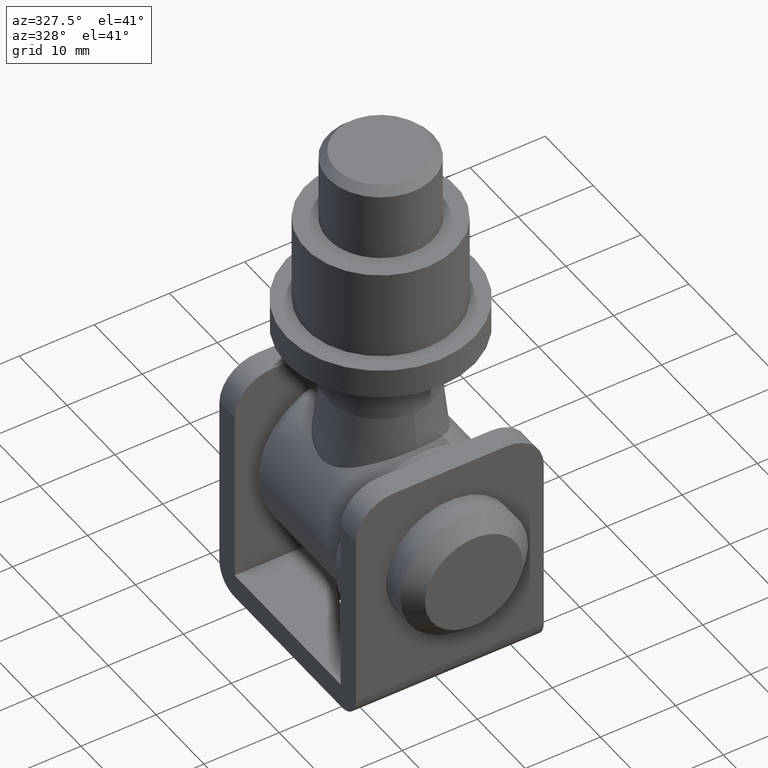
[diagram: clean part render]
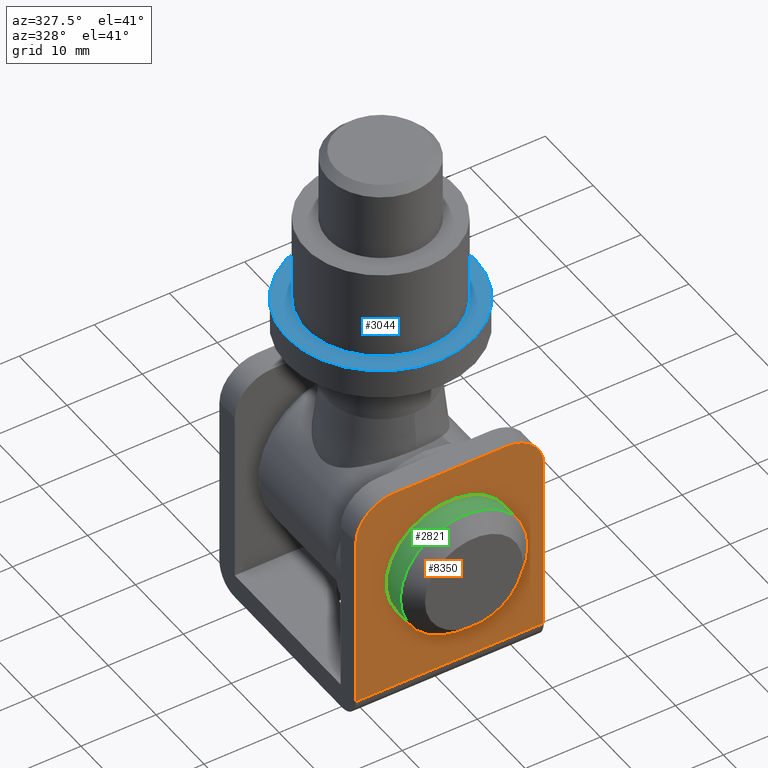
[diagram: same view with three faces highlighted in distinct colors, each labeled with its STEP entity id]
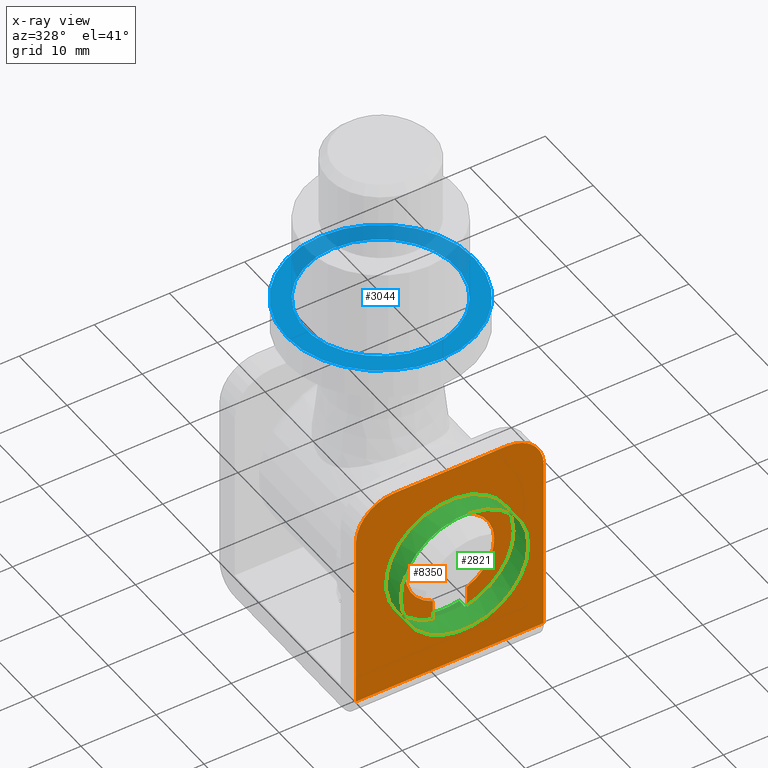
[diagram: x-ray of the same camera — body ghosted, the three highlighted faces saturated]
A machine part, auxiliary view with three faces highlighted in distinct colors.
The next image is the same camera in x-ray (body ghosted, the three faces saturated) — at least one of them is partly hidden behind the body in this view.
Their STEP definitions:

[orange] entity #8350 — the highlighted planar face has unit normal (0, 1, 0).
#52 = VECTOR ( 'NONE', #1464, 1000.000000000000000 ) ;
#75 = CARTESIAN_POINT ( 'NONE',  ( 2.249999999999999600, -14.25000000000000200, 13.14587312212119700 ) ) ;
#88 = PLANE ( 'NONE',  #3722 ) ;
#387 = ORIENTED_EDGE ( 'NONE', *, *, #9756, .F. ) ;
#402 = EDGE_CURVE ( 'NONE', #7294, #7739, #7251, .T. ) ;
#419 = VECTOR ( 'NONE', #12259, 1000.000000000000000 ) ;
#431 = CARTESIAN_POINT ( 'NONE',  ( -7.500000000000000000, -14.25000000000000200, 31.60000000000000100 ) ) ;
#746 = FACE_OUTER_BOUND ( 'NONE', #11589, .T. ) ;
#891 = DIRECTION ( 'NONE',  ( -0.0000000000000000000, 1.213093339843921800E-016, -1.000000000000000000 ) ) ;
#930 = VERTEX_POINT ( 'NONE', #431 ) ;
#1143 = ORIENTED_EDGE ( 'NONE', *, *, #4071, .F. ) ;
#1283 = VECTOR ( 'NONE', #891, 1000.000000000000000 ) ;
#1303 = CARTESIAN_POINT ( 'NONE',  ( -12.50000000000000000, -14.24999999999999800, 3.000000000000020900 ) ) ;
#1415 = CARTESIAN_POINT ( 'NONE',  ( -12.50000000000000000, -14.25000000000000200, 26.60000000000000100 ) ) ;
#1464 = DIRECTION ( 'NONE',  ( 0.0000000000000000000, 1.213093339843921800E-016, -1.000000000000000000 ) ) ;
#1805 = CARTESIAN_POINT ( 'NONE',  ( 2.250000000000000000, -14.25000000000000000, 13.14587312212119700 ) ) ;
#1924 = AXIS2_PLACEMENT_3D ( 'NONE', #11732, #2741, #6561 ) ;
#2236 = DIRECTION ( 'NONE',  ( 0.0000000000000000000, -1.000000000000000000, -1.213093339843921800E-016 ) ) ;
#2471 = EDGE_CURVE ( 'NONE', #3761, #5016, #8088, .T. ) ;
#2603 = LINE ( 'NONE', #5314, #419 ) ;
#2741 = DIRECTION ( 'NONE',  ( 0.0000000000000000000, 1.000000000000000000, 0.0000000000000000000 ) ) ;
#2986 = ORIENTED_EDGE ( 'NONE', *, *, #3904, .T. ) ;
#3127 = EDGE_LOOP ( 'NONE', ( #387, #4205, #2986, #1143 ) ) ;
#3133 = VERTEX_POINT ( 'NONE', #3250 ) ;
#3250 = CARTESIAN_POINT ( 'NONE',  ( 7.500000000000000900, -14.25000000000000200, 31.60000000000000100 ) ) ;
#3722 = AXIS2_PLACEMENT_3D ( 'NONE', #10145, #4122, #11076 ) ;
#3761 = VERTEX_POINT ( 'NONE', #1415 ) ;
#3904 = EDGE_CURVE ( 'NONE', #9634, #12872, #4327, .T. ) ;
#4071 = EDGE_CURVE ( 'NONE', #10161, #12872, #8225, .T. ) ;
#4122 = DIRECTION ( 'NONE',  ( -0.0000000000000000000, 1.000000000000000000, 1.213093339843921800E-016 ) ) ;
#4205 = ORIENTED_EDGE ( 'NONE', *, *, #11957, .F. ) ;
#4250 = CARTESIAN_POINT ( 'NONE',  ( 12.50000000000000000, -14.24999999999999800, 3.000000000000020400 ) ) ;
#4325 = CARTESIAN_POINT ( 'NONE',  ( 0.0000000000000000000, -14.25000000000000000, 18.60000000000000500 ) ) ;
#4327 = CIRCLE ( 'NONE', #1924, 5.900000000000002100 ) ;
#4461 = ORIENTED_EDGE ( 'NONE', *, *, #9916, .T. ) ;
#4466 = CARTESIAN_POINT ( 'NONE',  ( -2.250000000000000000, -14.25000000000000000, 13.14587312212119700 ) ) ;
#4564 = CARTESIAN_POINT ( 'NONE',  ( 2.250000000000001300, -14.25000000000000000, 9.989105737497418100 ) ) ;
#5016 = VERTEX_POINT ( 'NONE', #5590 ) ;
#5201 = EDGE_CURVE ( 'NONE', #7294, #3133, #9320, .T. ) ;
#5314 = CARTESIAN_POINT ( 'NONE',  ( 12.50000000000000000, -14.25000000000000200, 31.60000000000000100 ) ) ;
#5411 = ORIENTED_EDGE ( 'NONE', *, *, #10103, .T. ) ;
#5506 = DIRECTION ( 'NONE',  ( -1.000000000000000000, -0.0000000000000000000, -0.0000000000000000000 ) ) ;
#5576 = VECTOR ( 'NONE', #9867, 1000.000000000000000 ) ;
#5590 = CARTESIAN_POINT ( 'NONE',  ( -12.50000000000000000, -14.24999999999999800, 3.000000000000020400 ) ) ;
#5728 = VECTOR ( 'NONE', #5506, 1000.000000000000000 ) ;
#6056 = VECTOR ( 'NONE', #10236, 1000.000000000000000 ) ;
#6059 = CARTESIAN_POINT ( 'NONE',  ( 7.500000000000000900, -14.25000000000000200, 26.60000000000000100 ) ) ;
#6356 = ORIENTED_EDGE ( 'NONE', *, *, #402, .F. ) ;
#6533 = CIRCLE ( 'NONE', #7164, 5.000000000000000900 ) ;
#6561 = DIRECTION ( 'NONE',  ( 0.0000000000000000000, 0.0000000000000000000, 1.000000000000000000 ) ) ;
#6896 = CARTESIAN_POINT ( 'NONE',  ( 12.50000000000000000, -14.24999999999999800, 3.000000000000020900 ) ) ;
#7164 = AXIS2_PLACEMENT_3D ( 'NONE', #8590, #12751, #11633 ) ;
#7251 = LINE ( 'NONE', #6896, #1283 ) ;
#7294 = VERTEX_POINT ( 'NONE', #8990 ) ;
#7739 = VERTEX_POINT ( 'NONE', #4250 ) ;
#7882 = VERTEX_POINT ( 'NONE', #9907 ) ;
#7985 = DIRECTION ( 'NONE',  ( 0.0000000000000000000, -1.000000000000000000, -1.213093339843921800E-016 ) ) ;
#8088 = LINE ( 'NONE', #1303, #6056 ) ;
#8197 = DIRECTION ( 'NONE',  ( 2.664535259100375700E-015, -1.949127501097536400E-016, 1.000000000000000000 ) ) ;
#8225 = LINE ( 'NONE', #1805, #5576 ) ;
#8350 = ADVANCED_FACE ( 'NONE', ( #11418, #746 ), #88, .F. ) ;
#8394 = LINE ( 'NONE', #12626, #5728 ) ;
#8590 = CARTESIAN_POINT ( 'NONE',  ( -7.500000000000000000, -14.25000000000000200, 26.60000000000000100 ) ) ;
#8857 = DIRECTION ( 'NONE',  ( 0.0000000000000000000, 0.0000000000000000000, 1.000000000000000000 ) ) ;
#8990 = CARTESIAN_POINT ( 'NONE',  ( 12.50000000000000000, -14.25000000000000200, 26.60000000000000100 ) ) ;
#9320 = CIRCLE ( 'NONE', #9902, 5.000000000000000900 ) ;
#9634 = VERTEX_POINT ( 'NONE', #10157 ) ;
#9756 = EDGE_CURVE ( 'NONE', #7882, #10161, #12367, .T. ) ;
#9867 = DIRECTION ( 'NONE',  ( 0.0000000000000000000, -1.213093339843921800E-016, 1.000000000000000000 ) ) ;
#9900 = ORIENTED_EDGE ( 'NONE', *, *, #5201, .T. ) ;
#9902 = AXIS2_PLACEMENT_3D ( 'NONE', #6059, #7985, #8857 ) ;
#9907 = CARTESIAN_POINT ( 'NONE',  ( -2.250000000000000000, -14.25000000000000200, 9.989105737497416400 ) ) ;
#9916 = EDGE_CURVE ( 'NONE', #930, #3761, #6533, .T. ) ;
#9918 = AXIS2_PLACEMENT_3D ( 'NONE', #4325, #2236, #8197 ) ;
#10063 = LINE ( 'NONE', #4466, #52 ) ;
#10103 = EDGE_CURVE ( 'NONE', #3133, #930, #2603, .T. ) ;
#10145 = CARTESIAN_POINT ( 'NONE',  ( 12.50000000000000000, -14.24999999999999800, 3.000000000000020900 ) ) ;
#10157 = CARTESIAN_POINT ( 'NONE',  ( -2.250000000000000000, -14.25000000000000200, 13.14587312212119700 ) ) ;
#10161 = VERTEX_POINT ( 'NONE', #4564 ) ;
#10236 = DIRECTION ( 'NONE',  ( -0.0000000000000000000, 1.213093339843921800E-016, -1.000000000000000000 ) ) ;
#10709 = EDGE_CURVE ( 'NONE', #7739, #5016, #8394, .T. ) ;
#11076 = DIRECTION ( 'NONE',  ( 0.0000000000000000000, -1.213093339843921800E-016, 1.000000000000000000 ) ) ;
#11418 = FACE_BOUND ( 'NONE', #3127, .T. ) ;
#11435 = ORIENTED_EDGE ( 'NONE', *, *, #10709, .F. ) ;
#11533 = ORIENTED_EDGE ( 'NONE', *, *, #2471, .T. ) ;
#11589 = EDGE_LOOP ( 'NONE', ( #6356, #9900, #5411, #4461, #11533, #11435 ) ) ;
#11633 = DIRECTION ( 'NONE',  ( 0.0000000000000000000, 0.0000000000000000000, 1.000000000000000000 ) ) ;
#11732 = CARTESIAN_POINT ( 'NONE',  ( 0.0000000000000000000, -14.25000000000000200, 18.60000000000000500 ) ) ;
#11957 = EDGE_CURVE ( 'NONE', #9634, #7882, #10063, .T. ) ;
#12259 = DIRECTION ( 'NONE',  ( -1.000000000000000000, -0.0000000000000000000, -0.0000000000000000000 ) ) ;
#12367 = CIRCLE ( 'NONE', #9918, 8.899999999999998600 ) ;
#12626 = CARTESIAN_POINT ( 'NONE',  ( 12.50000000000000000, -14.24999999999999800, 3.000000000000020400 ) ) ;
#12751 = DIRECTION ( 'NONE',  ( 0.0000000000000000000, -1.000000000000000000, -1.213093339843921800E-016 ) ) ;
#12872 = VERTEX_POINT ( 'NONE', #75 ) ;

[blue] entity #3044 — the highlighted planar face has unit normal (0, 0, 1).
#167 = ORIENTED_EDGE ( 'NONE', *, *, #11522, .T. ) ;
#249 = CIRCLE ( 'NONE', #8444, 12.50000000000000000 ) ;
#684 = CIRCLE ( 'NONE', #938, 9.999999999999998200 ) ;
#938 = AXIS2_PLACEMENT_3D ( 'NONE', #2538, #12741, #9586 ) ;
#960 = CARTESIAN_POINT ( 'NONE',  ( 9.999999999999998200, 4.000000000000003600, 0.0000000000000000000 ) ) ;
#2538 = CARTESIAN_POINT ( 'NONE',  ( 0.0000000000000000000, 4.000000000000003600, 0.0000000000000000000 ) ) ;
#3044 = ADVANCED_FACE ( 'NONE', ( #4485, #3855 ), #5039, .T. ) ;
#3460 = CARTESIAN_POINT ( 'NONE',  ( 0.0000000000000000000, 4.000000000000003600, -9.999999999999998200 ) ) ;
#3636 = VERTEX_POINT ( 'NONE', #12554 ) ;
#3770 = DIRECTION ( 'NONE',  ( 0.0000000000000000000, 0.0000000000000000000, -1.000000000000000000 ) ) ;
#3855 = FACE_OUTER_BOUND ( 'NONE', #10727, .T. ) ;
#4485 = FACE_BOUND ( 'NONE', #11249, .T. ) ;
#5039 = PLANE ( 'NONE',  #9821 ) ;
#7704 = VERTEX_POINT ( 'NONE', #3460 ) ;
#8444 = AXIS2_PLACEMENT_3D ( 'NONE', #10672, #11796, #3770 ) ;
#9586 = DIRECTION ( 'NONE',  ( 0.0000000000000000000, 0.0000000000000000000, -1.000000000000000000 ) ) ;
#9821 = AXIS2_PLACEMENT_3D ( 'NONE', #960, #11987, #10902 ) ;
#10249 = EDGE_CURVE ( 'NONE', #3636, #3636, #249, .T. ) ;
#10672 = CARTESIAN_POINT ( 'NONE',  ( 0.0000000000000000000, 4.000000000000003600, 0.0000000000000000000 ) ) ;
#10727 = EDGE_LOOP ( 'NONE', ( #11852 ) ) ;
#10902 = DIRECTION ( 'NONE',  ( 0.0000000000000000000, 0.0000000000000000000, 1.000000000000000000 ) ) ;
#11249 = EDGE_LOOP ( 'NONE', ( #167 ) ) ;
#11522 = EDGE_CURVE ( 'NONE', #7704, #7704, #684, .T. ) ;
#11796 = DIRECTION ( 'NONE',  ( 0.0000000000000000000, -1.000000000000000000, 0.0000000000000000000 ) ) ;
#11852 = ORIENTED_EDGE ( 'NONE', *, *, #10249, .F. ) ;
#11987 = DIRECTION ( 'NONE',  ( 0.0000000000000000000, 1.000000000000000000, 0.0000000000000000000 ) ) ;
#12554 = CARTESIAN_POINT ( 'NONE',  ( 0.0000000000000000000, 4.000000000000003600, -12.50000000000000000 ) ) ;
#12741 = DIRECTION ( 'NONE',  ( 0.0000000000000000000, -1.000000000000000000, 0.0000000000000000000 ) ) ;

[green] entity #2821 — the highlighted cylindrical surface (bore or boss wall) has radius 8.5 mm, axis along (-0, 1, -0).
#8 = EDGE_CURVE ( 'NONE', #9289, #9778, #7715, .T. ) ;
#212 = EDGE_LOOP ( 'NONE', ( #5253 ) ) ;
#452 = DIRECTION ( 'NONE',  ( -7.040273847308480800E-017, 1.000000000000000000, -1.532670195355268700E-046 ) ) ;
#743 = EDGE_CURVE ( 'NONE', #9289, #2177, #2540, .T. ) ;
#954 = CARTESIAN_POINT ( 'NONE',  ( -3.520136923654231900E-016, 5.000000000000000900, 0.0000000000000000000 ) ) ;
#1162 = AXIS2_PLACEMENT_3D ( 'NONE', #2881, #4853, #12895 ) ;
#1616 = ORIENTED_EDGE ( 'NONE', *, *, #8, .T. ) ;
#1671 = DIRECTION ( 'NONE',  ( -1.000000000000000000, 0.0000000000000000000, 0.0000000000000000000 ) ) ;
#2177 = VERTEX_POINT ( 'NONE', #6050 ) ;
#2540 = LINE ( 'NONE', #9407, #6621 ) ;
#2821 = ADVANCED_FACE ( 'NONE', ( #12521, #5434 ), #8863, .T. ) ;
#2881 = CARTESIAN_POINT ( 'NONE',  ( 0.0000000000000000000, 6.183419246269069800, 0.0000000000000000000 ) ) ;
#3023 = LINE ( 'NONE', #10978, #6472 ) ;
#3167 = VERTEX_POINT ( 'NONE', #6605 ) ;
#3649 = DIRECTION ( 'NONE',  ( -7.040273847308470900E-017, 1.000000000000000000, 0.0000000000000000000 ) ) ;
#3860 = ORIENTED_EDGE ( 'NONE', *, *, #6756, .F. ) ;
#4629 = AXIS2_PLACEMENT_3D ( 'NONE', #12753, #3649, #1671 ) ;
#4669 = AXIS2_PLACEMENT_3D ( 'NONE', #10383, #452, #7282 ) ;
#4853 = DIRECTION ( 'NONE',  ( -1.744780802748184100E-047, -1.000000000000000000, 0.0000000000000000000 ) ) ;
#5253 = ORIENTED_EDGE ( 'NONE', *, *, #11061, .T. ) ;
#5258 = CIRCLE ( 'NONE', #4669, 8.500000000000000000 ) ;
#5434 = FACE_OUTER_BOUND ( 'NONE', #12549, .T. ) ;
#6050 = CARTESIAN_POINT ( 'NONE',  ( 2.000000000000005800, 4.999999999999999100, 8.261355820929152200 ) ) ;
#6472 = VECTOR ( 'NONE', #9849, 1000.000000000000000 ) ;
#6605 = CARTESIAN_POINT ( 'NONE',  ( -8.500000000000000000, 1.999999999999997800, 0.0000000000000000000 ) ) ;
#6621 = VECTOR ( 'NONE', #10405, 1000.000000000000000 ) ;
#6756 = EDGE_CURVE ( 'NONE', #2177, #7010, #12764, .T. ) ;
#7010 = VERTEX_POINT ( 'NONE', #8615 ) ;
#7282 = DIRECTION ( 'NONE',  ( -1.000000000000000000, -5.102127870520020600E-017, 0.0000000000000000000 ) ) ;
#7689 = CARTESIAN_POINT ( 'NONE',  ( 1.999999999999999100, 6.183419246269069800, 8.261355820929152200 ) ) ;
#7715 = CIRCLE ( 'NONE', #1162, 8.500000000000000000 ) ;
#8502 = CARTESIAN_POINT ( 'NONE',  ( -2.000000000000000900, 6.183419246269069800, 8.261355820929152200 ) ) ;
#8615 = CARTESIAN_POINT ( 'NONE',  ( -1.999999999999994000, 4.999999999999999100, 8.261355820929152200 ) ) ;
#8863 = CYLINDRICAL_SURFACE ( 'NONE', #4629, 8.500000000000000000 ) ;
#9289 = VERTEX_POINT ( 'NONE', #7689 ) ;
#9407 = CARTESIAN_POINT ( 'NONE',  ( 1.999999999999998700, 15.00000000000000000, 8.261355820929152200 ) ) ;
#9778 = VERTEX_POINT ( 'NONE', #8502 ) ;
#9841 = AXIS2_PLACEMENT_3D ( 'NONE', #954, #12249, #12024 ) ;
#9849 = DIRECTION ( 'NONE',  ( 7.040273847308470900E-017, -1.000000000000000000, 0.0000000000000000000 ) ) ;
#10383 = CARTESIAN_POINT ( 'NONE',  ( -1.408054769461691200E-016, 1.999999999999998200, 0.0000000000000000000 ) ) ;
#10405 = DIRECTION ( 'NONE',  ( 7.040273847308470900E-017, -1.000000000000000000, 0.0000000000000000000 ) ) ;
#10978 = CARTESIAN_POINT ( 'NONE',  ( -2.000000000000000900, 15.00000000000000000, 8.261355820929152200 ) ) ;
#11061 = EDGE_CURVE ( 'NONE', #3167, #3167, #5258, .T. ) ;
#11629 = ORIENTED_EDGE ( 'NONE', *, *, #12656, .T. ) ;
#11917 = ORIENTED_EDGE ( 'NONE', *, *, #743, .F. ) ;
#12024 = DIRECTION ( 'NONE',  ( -1.000000000000000000, -1.020425574104004100E-016, 0.0000000000000000000 ) ) ;
#12249 = DIRECTION ( 'NONE',  ( -7.040273847308470900E-017, 1.000000000000000000, 0.0000000000000000000 ) ) ;
#12521 = FACE_OUTER_BOUND ( 'NONE', #212, .T. ) ;
#12549 = EDGE_LOOP ( 'NONE', ( #1616, #11629, #3860, #11917 ) ) ;
#12656 = EDGE_CURVE ( 'NONE', #9778, #7010, #3023, .T. ) ;
#12753 = CARTESIAN_POINT ( 'NONE',  ( -2.168404344971008900E-015, 30.80000000000000100, 0.0000000000000000000 ) ) ;
#12764 = CIRCLE ( 'NONE', #9841, 8.500000000000000000 ) ;
#12895 = DIRECTION ( 'NONE',  ( 0.0000000000000000000, 0.0000000000000000000, -1.000000000000000000 ) ) ;